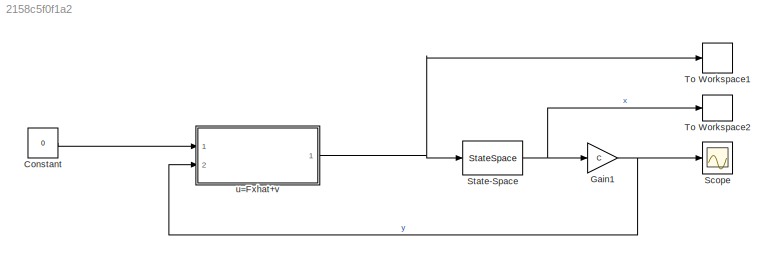
MODEL slx_2158c5f0f1a2
KIND model
CONFIG AbsTol = auto
CONFIG EnableMultiTasking = off
CONFIG FixedStep = auto
CONFIG MaxStep = auto
CONFIG MinStep = auto
CONFIG RelTol = 1e-3
CONFIG SampleTimeConstraint = Unconstrained
CONFIG Solver = ode45
CONFIG SolverName = ode45
CONFIG StartTime = 0.0
CONFIG StopTime = 10.0
BLOCK [Constant] Constant
  Value = 0
BLOCK [Gain] Gain1
  Gain = C
  Multiplication = Matrix(K*u)
  OutDataTypeStr = Inherit: Inherit via internal rule
  ParamDataTypeStr = Inherit: Inherit via internal rule
  SaturateOnIntegerOverflow = off
BLOCK [Scope] Scope
  Floating = off
  NumInputPorts = 1
  Ports = [1]
  ScopeSpecificationString = Simulink.scopes.TimeScopeBlockCfg('CurrentConfiguration', extmgr.ConfigurationSet(extmgr.Configuration('Core','General UI',true),extmgr.Configuration('Core','Source UI',true),extmgr.Configuration('Sources','WiredSimulink',true),extmgr.Configuration('Visuals','Time Domain',true,'SerializedDisplays',{struct('MinYLimReal','-0.66978','MaxYLimReal','0.78561','YLabelReal','','MinYLimMag','0.00000','MaxY...<+1397ch>
BLOCK [StateSpace] State-Space
  A = A
  B = B
  C = eye(4)
  D = zeros(4,1)
  InitialCondition = [0.1 0 0.1 0]
  Ports = [1, 1]
BLOCK [ToWorkspace] To Workspace1
  FixptAsFi = on
  MaxDataPoints = inf
  Ports = [1]
  SampleTime = -1
  Save2DSignal = 2-D array (concatenate along first dimension)
  VariableName = u
BLOCK [ToWorkspace] To Workspace2
  FixptAsFi = on
  MaxDataPoints = inf
  Ports = [1]
  SampleTime = -1
  Save2DSignal = 2-D array (concatenate along first dimension)
  VariableName = x
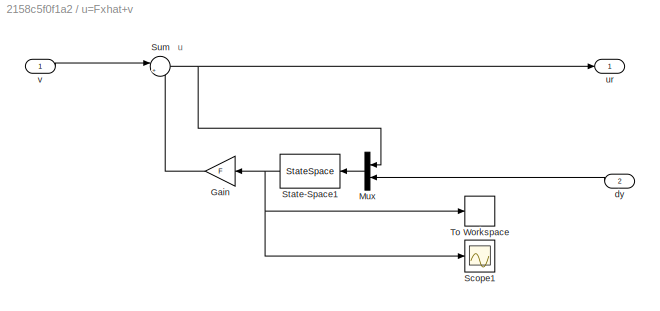
BLOCK [SubSystem] u=Fxhat+v
  Ports = [2, 1]
  RequestExecContextInheritance = off
BLOCK [Gain] u=Fxhat+v/Gain
  Gain = F
  Multiplication = Matrix(K*u)
  OutDataTypeStr = Inherit: Inherit via internal rule
  ParamDataTypeStr = Inherit: Inherit via internal rule
  SaturateOnIntegerOverflow = off
BLOCK [Mux] u=Fxhat+v/Mux
  DisplayOption = bar
  Inputs = 2
  Ports = [2, 1]
BLOCK [Scope] u=Fxhat+v/Scope1
  Floating = off
  NumInputPorts = 1
  Ports = [1]
  ScopeSpecificationString = Simulink.scopes.TimeScopeBlockCfg('CurrentConfiguration', extmgr.ConfigurationSet(extmgr.Configuration('Core','General UI',true),extmgr.Configuration('Core','Source UI',true),extmgr.Configuration('Sources','WiredSimulink',true,'DataLoggingVariableName','ScopeData1'),extmgr.Configuration('Visuals','Time Domain',true,'SerializedDisplays',{struct('MinYLimReal','-1.31414','MaxYLimReal','1.1591','YLabe...<+1490ch>
BLOCK [StateSpace] u=Fxhat+v/State-Space1
  A = A1
  B = [B K]
  C = eye(4)
  D = zeros(4, 3)
  InitialCondition = [0 0 0 0]
  Ports = [1, 1]
BLOCK [Sum] u=Fxhat+v/Sum
  IconShape = round
  InputSameDT = off
  Inputs = |++
  OutDataTypeStr = Inherit: Inherit via internal rule
  Ports = [2, 1]
  SaturateOnIntegerOverflow = off
BLOCK [ToWorkspace] u=Fxhat+v/To Workspace
  FixptAsFi = on
  MaxDataPoints = inf
  Ports = [1]
  SampleTime = -1
  Save2DSignal = 2-D array (concatenate along first dimension)
  VariableName = xi
BLOCK [Inport] u=Fxhat+v/dy
  IconDisplay = Port number
  Port = 2
BLOCK [Outport] u=Fxhat+v/ur
  IconDisplay = Port number
BLOCK [Inport] u=Fxhat+v/v
  IconDisplay = Port number
ANNOTATION u=Fxhat+v: u
LINE Constant:1 -> u=Fxhat+v:1
NET Gain1:1 -> Scope:1, u=Fxhat+v:2
NET State-Space:1 -> Gain1:1, To Workspace2:1
LINE u=Fxhat+v/Gain:1 -> u=Fxhat+v/Sum:2
LINE u=Fxhat+v/Mux:1 -> u=Fxhat+v/State-Space1:1
NET u=Fxhat+v/State-Space1:1 -> u=Fxhat+v/Gain:1, u=Fxhat+v/Scope1:1, u=Fxhat+v/To Workspace:1
NET u=Fxhat+v/Sum:1 -> u=Fxhat+v/Mux:1, u=Fxhat+v/ur:1
LINE u=Fxhat+v/dy:1 -> u=Fxhat+v/Mux:2
LINE u=Fxhat+v/v:1 -> u=Fxhat+v/Sum:1
NET u=Fxhat+v:1 -> State-Space:1, To Workspace1:1
note: NET lines group one-source signal fan-out (src -> all destinations, sorted); 1:1 wires keep LINE
